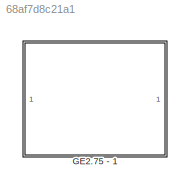
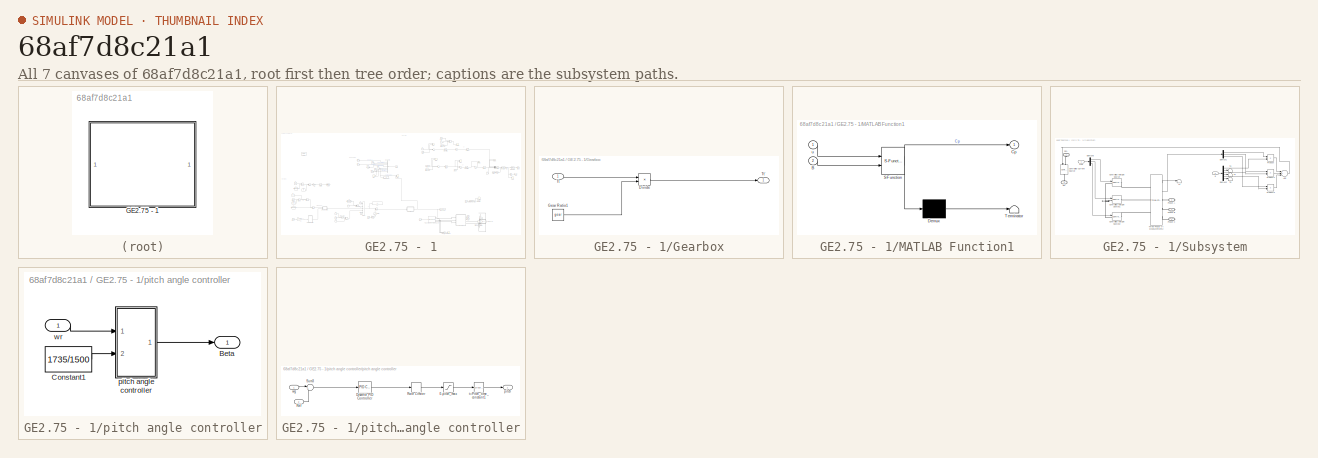
[diagram: thumbnail index - all 7 canvases of the model, root first then tree order]
MODEL slx_68af7d8c21a1
KIND model
CONFIG AbsTol = auto
CONFIG FixedStep = Ts
CONFIG MaxStep = auto
CONFIG MinStep = auto
CONFIG RelTol = 1e-3
CONFIG SampleTimeConstraint = Unconstrained
CONFIG Solver = FixedStepAuto
CONFIG SolverMode = Auto
CONFIG SolverName = FixedStepAuto
CONFIG StartTime = 0.0
CONFIG StopTime = 25
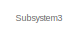
[diagram: GE2.75 - 1 - part 1/8, top center region]
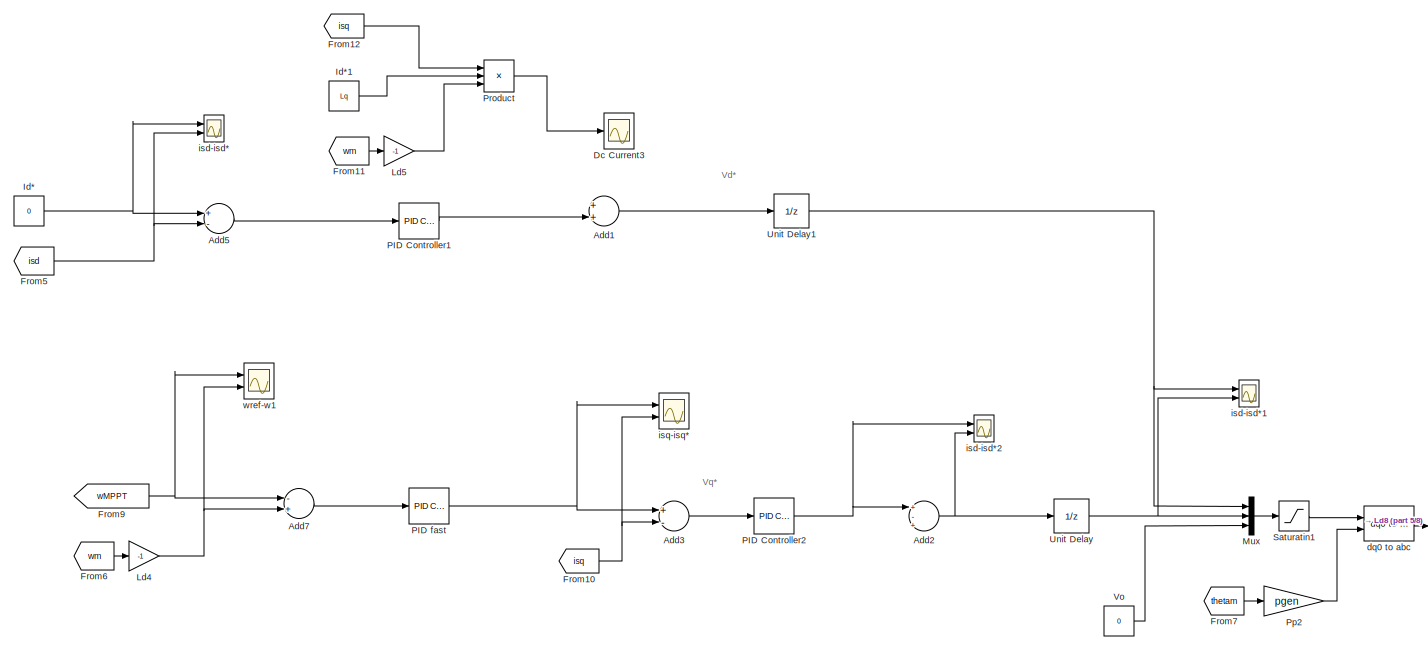
[diagram: GE2.75 - 1 - part 2/8, top right region]
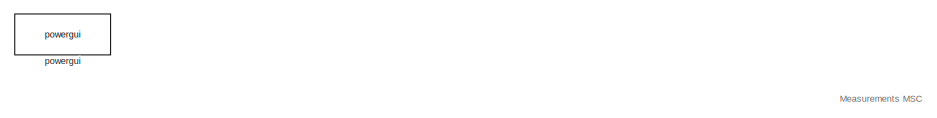
[diagram: GE2.75 - 1 - part 3/8, top left region]
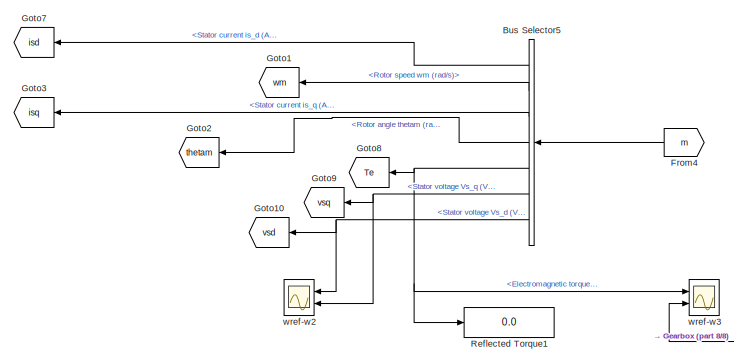
[diagram: GE2.75 - 1 - part 4/8, central region]
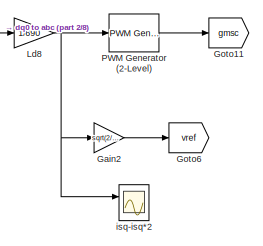
[diagram: GE2.75 - 1 - part 5/8, middle right region]
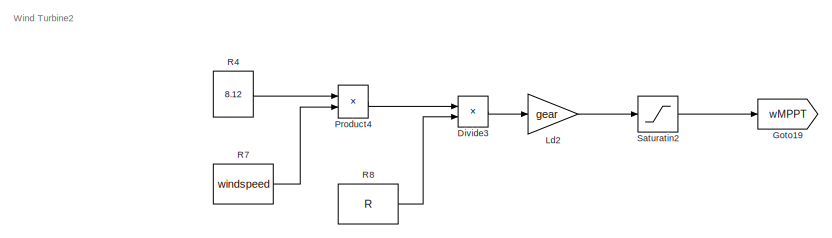
[diagram: GE2.75 - 1 - part 6/8, middle left region]
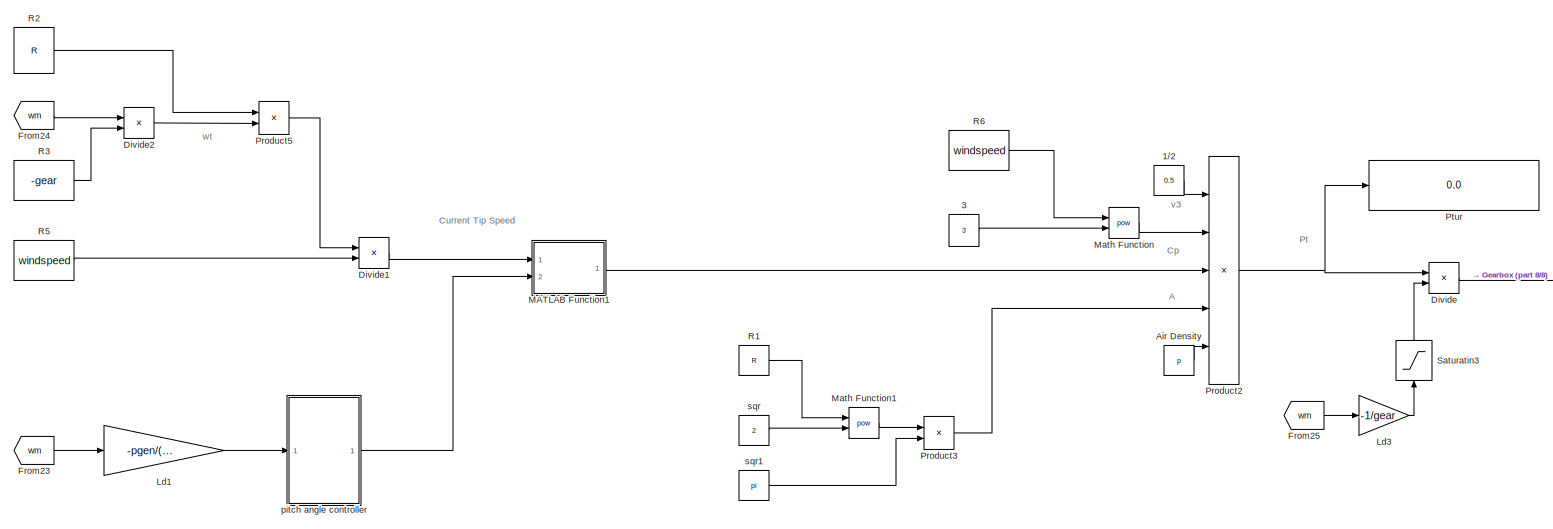
[diagram: GE2.75 - 1 - part 7/8, bottom left region]
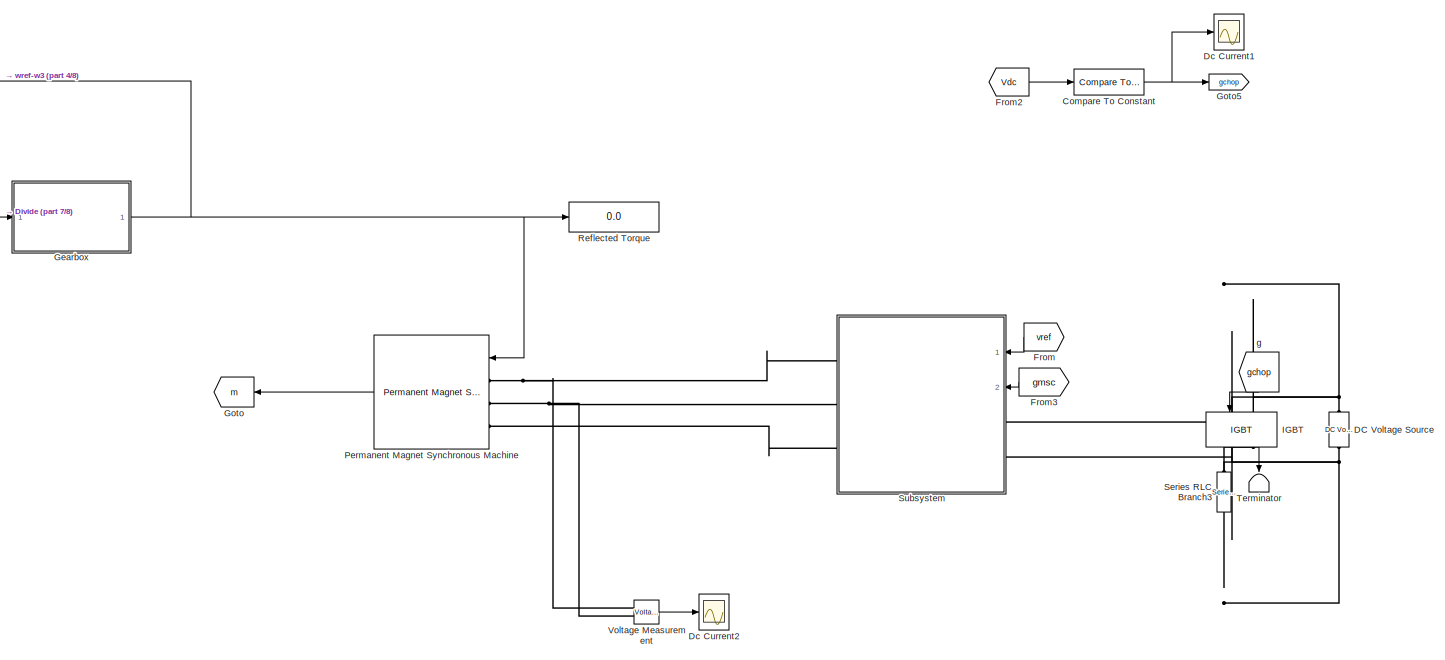
[diagram: GE2.75 - 1 - part 8/8, bottom right region]
BLOCK [SubSystem] GE2.75 - 1
  Ports = []
  RequestExecContextInheritance = off
  Variant = off
BLOCK [Constant] GE2.75 - 1/1//2
  Value = 0.5
BLOCK [Constant] GE2.75 - 1/3
  Value = 3
BLOCK [Sum] GE2.75 - 1/Add1
  InputSameDT = off
  OutDataTypeStr = Inherit: Inherit via internal rule
  Ports = [2, 1]
  SaturateOnIntegerOverflow = off
BLOCK [Sum] GE2.75 - 1/Add2
  InputSameDT = off
  Inputs = +-+
  OutDataTypeStr = Inherit: Inherit via internal rule
  Ports = [3, 1]
  SaturateOnIntegerOverflow = off
BLOCK [Sum] GE2.75 - 1/Add3
  InputSameDT = off
  Inputs = +-
  OutDataTypeStr = Inherit: Inherit via internal rule
  Ports = [2, 1]
  SaturateOnIntegerOverflow = off
BLOCK [Sum] GE2.75 - 1/Add5
  InputSameDT = off
  Inputs = +-
  OutDataTypeStr = Inherit: Inherit via internal rule
  Ports = [2, 1]
  SaturateOnIntegerOverflow = off
BLOCK [Sum] GE2.75 - 1/Add7
  InputSameDT = off
  Inputs = -+
  OutDataTypeStr = Inherit: Inherit via internal rule
  Ports = [2, 1]
  SaturateOnIntegerOverflow = off
BLOCK [Constant] GE2.75 - 1/Air Density
  Value = p
BLOCK [BusSelector] GE2.75 - 1/Bus Selector5
  OutputSignals = Stator current is_d (A),Rotor speed wm (rad/s),Stator current is_q (A),Rotor angle thetam (rad),Electromagnetic torque Te (N*m),Stator voltage Vs_q (V),Stator voltage Vs_d (V)
  Ports = [1, 7]
BLOCK [Reference] GE2.75 - 1/Compare To Constant  REF=simulink/Logic and Bit
Operations/Compare
To Constant
  Ports = [1, 1]
  SourceBlock = simulink/Logic and Bit\nOperations/Compare\nTo Constant
  SourceType = Compare To Constant
BLOCK [Reference] GE2.75 - 1/DC Voltage Source  REF=powerlib/Electrical
Sources/DC Voltage Source
  Ports = [0, 0, 0, 0, 0, 1, 1]
  SourceBlock = powerlib/Electrical\nSources/DC Voltage Source
  SourceType = DC Voltage Source
BLOCK [Scope] GE2.75 - 1/Dc Current1
  Ports = [1]
  ScopeSpecificationString = Simulink.scopes.TimeScopeBlockCfg('CurrentConfiguration', extmgr.ConfigurationSet(extmgr.Configuration('Core','General UI',true),extmgr.Configuration('Core','Source UI',true),extmgr.Configuration('Sources','WiredSimulink',true,'DataLoggingVariableName','ScopeData1'),extmgr.Configuration('Visuals','Time Domain',true,'SerializedDisplays',{struct('MinYLimReal','-0.29202','MaxYLimReal','1.08911','YLab...<+1422ch>
BLOCK [Scope] GE2.75 - 1/Dc Current2
  Ports = [1]
  ScopeSpecificationString = Simulink.scopes.TimeScopeBlockCfg('CurrentConfiguration', extmgr.ConfigurationSet(extmgr.Configuration('Core','General UI',true),extmgr.Configuration('Core','Source UI',true),extmgr.Configuration('Sources','WiredSimulink',true,'DataLoggingVariableName','ScopeData1'),extmgr.Configuration('Visuals','Time Domain',true,'SerializedDisplays',{struct('MinYLimReal','-2200137.60202','MaxYLimReal','2178040....<+1468ch>
BLOCK [Scope] GE2.75 - 1/Dc Current3
  Ports = [1]
  ScopeSpecificationString = Simulink.scopes.TimeScopeBlockCfg('CurrentConfiguration', extmgr.ConfigurationSet(extmgr.Configuration('Core','General UI',true),extmgr.Configuration('Core','Source UI',true),extmgr.Configuration('Sources','WiredSimulink',true,'DataLoggingVariableName','ScopeData6'),extmgr.Configuration('Visuals','Time Domain',true,'SerializedDisplays',{struct('MinYLimReal','-43.84094','MaxYLimReal','394.56847','Y...<+1449ch>
BLOCK [Product] GE2.75 - 1/Divide
  InputSameDT = off
  Inputs = */
  OutDataTypeStr = Inherit: Inherit via internal rule
  Ports = [2, 1]
  RndMeth = Floor
  SaturateOnIntegerOverflow = off
BLOCK [Product] GE2.75 - 1/Divide1
  InputSameDT = off
  Inputs = */
  OutDataTypeStr = Inherit: Inherit via internal rule
  Ports = [2, 1]
  RndMeth = Floor
  SaturateOnIntegerOverflow = off
BLOCK [Product] GE2.75 - 1/Divide2
  InputSameDT = off
  Inputs = */
  OutDataTypeStr = Inherit: Inherit via internal rule
  Ports = [2, 1]
  RndMeth = Floor
  SaturateOnIntegerOverflow = off
BLOCK [Product] GE2.75 - 1/Divide3
  InputSameDT = off
  Inputs = */
  OutDataTypeStr = Inherit: Inherit via internal rule
  Ports = [2, 1]
  RndMeth = Floor
  SaturateOnIntegerOverflow = off
BLOCK [From] GE2.75 - 1/From
  GotoTag = vref
  TagVisibility = global
BLOCK [From] GE2.75 - 1/From10
  GotoTag = isq
BLOCK [From] GE2.75 - 1/From11
  GotoTag = wm
BLOCK [From] GE2.75 - 1/From12
  GotoTag = isq
BLOCK [From] GE2.75 - 1/From2
  GotoTag = Vdc
BLOCK [From] GE2.75 - 1/From23
  GotoTag = wm
BLOCK [From] GE2.75 - 1/From24
  GotoTag = wm
BLOCK [From] GE2.75 - 1/From25
  GotoTag = wm
BLOCK [From] GE2.75 - 1/From3
  GotoTag = gmsc
BLOCK [From] GE2.75 - 1/From4
  GotoTag = m
BLOCK [From] GE2.75 - 1/From5
  GotoTag = isd
BLOCK [From] GE2.75 - 1/From6
  GotoTag = wm
BLOCK [From] GE2.75 - 1/From7
  GotoTag = thetam
BLOCK [From] GE2.75 - 1/From9
  GotoTag = wMPPT
BLOCK [Gain] GE2.75 - 1/Gain2
  Gain = sqrt(2/3)*690
  OutDataTypeStr = Inherit: Inherit via internal rule
  ParamDataTypeStr = Inherit: Inherit via internal rule
  SaturateOnIntegerOverflow = off
BLOCK [SubSystem] GE2.75 - 1/Gearbox
  Ports = [1, 1]
  RequestExecContextInheritance = off
  Variant = off
BLOCK [Product] GE2.75 - 1/Gearbox/Divide
  InputSameDT = off
  Inputs = */
  OutDataTypeStr = Inherit: Inherit via internal rule
  Ports = [2, 1]
  RndMeth = Floor
  SaturateOnIntegerOverflow = off
BLOCK [Constant] GE2.75 - 1/Gearbox/Gear Ratio1
  Value = gear
BLOCK [Inport] GE2.75 - 1/Gearbox/Tt
  IconDisplay = Port number
BLOCK [Outport] GE2.75 - 1/Gearbox/Tt'
  IconDisplay = Port number
BLOCK [Goto] GE2.75 - 1/Goto
  GotoTag = m
BLOCK [Goto] GE2.75 - 1/Goto1
  GotoTag = wm
BLOCK [Goto] GE2.75 - 1/Goto10
  GotoTag = vsd
BLOCK [Goto] GE2.75 - 1/Goto11
  GotoTag = gmsc
BLOCK [Goto] GE2.75 - 1/Goto19
  GotoTag = wMPPT
BLOCK [Goto] GE2.75 - 1/Goto2
  GotoTag = thetam
BLOCK [Goto] GE2.75 - 1/Goto3
  GotoTag = isq
BLOCK [Goto] GE2.75 - 1/Goto5
  GotoTag = gchop
BLOCK [Goto] GE2.75 - 1/Goto6
  GotoTag = vref
  TagVisibility = global
BLOCK [Goto] GE2.75 - 1/Goto7
  GotoTag = isd
BLOCK [Goto] GE2.75 - 1/Goto8
  GotoTag = Te
BLOCK [Goto] GE2.75 - 1/Goto9
  GotoTag = vsq
BLOCK [Reference] GE2.75 - 1/IGBT  REF=powerlib/Power
Electronics/IGBT
  Ports = [1, 1, 0, 0, 0, 1, 1]
  SourceBlock = powerlib/Power\nElectronics/IGBT
  SourceType = IGBT
BLOCK [Constant] GE2.75 - 1/Id*
  Value = 0
BLOCK [Constant] GE2.75 - 1/Id*1
  Value = Lq
BLOCK [Gain] GE2.75 - 1/Ld1
  Gain = -pgen/(2*fnom*pi)
  OutDataTypeStr = Inherit: Inherit via internal rule
  ParamDataTypeStr = Inherit: Inherit via internal rule
  SaturateOnIntegerOverflow = off
BLOCK [Gain] GE2.75 - 1/Ld2
  Gain = gear
  OutDataTypeStr = Inherit: Inherit via internal rule
  ParamDataTypeStr = Inherit: Inherit via internal rule
  SaturateOnIntegerOverflow = off
BLOCK [Gain] GE2.75 - 1/Ld3
  Gain = -1/gear
  OutDataTypeStr = Inherit: Inherit via internal rule
  ParamDataTypeStr = Inherit: Inherit via internal rule
  SaturateOnIntegerOverflow = off
BLOCK [Gain] GE2.75 - 1/Ld4
  Gain = -1
  OutDataTypeStr = Inherit: Inherit via internal rule
  ParamDataTypeStr = Inherit: Inherit via internal rule
  SaturateOnIntegerOverflow = off
BLOCK [Gain] GE2.75 - 1/Ld5
  Gain = -1
  OutDataTypeStr = Inherit: Inherit via internal rule
  ParamDataTypeStr = Inherit: Inherit via internal rule
  SaturateOnIntegerOverflow = off
BLOCK [Gain] GE2.75 - 1/Ld8
  Gain = 1/690
  OutDataTypeStr = Inherit: Inherit via internal rule
  ParamDataTypeStr = Inherit: Inherit via internal rule
  SaturateOnIntegerOverflow = off
BLOCK [SubSystem] GE2.75 - 1/MATLAB Function1
  ErrorFcn = Stateflow.Translate.translate
  PermitHierarchicalResolution = ExplicitOnly
  Ports = [2, 1]
  RequestExecContextInheritance = off
  SFBlockType = MATLAB Function
  TreatAsAtomicUnit = on
  Variant = off
BLOCK [Demux] GE2.75 - 1/MATLAB Function1/ Demux 
  Outputs = 1
  Ports = [1, 1]
BLOCK [S-Function] GE2.75 - 1/MATLAB Function1/ SFunction 
  EnableBusSupport = on
  FunctionName = sf_sfun
  PortCounts = [2 2]
  Ports = [2, 2]
  SFunctionDeploymentMode = off
  Tag = Stateflow S-Function MSC_v2 1
BLOCK [Terminator] GE2.75 - 1/MATLAB Function1/ Terminator 
BLOCK [Inport] GE2.75 - 1/MATLAB Function1/B
  IconDisplay = Port number
  Port = 2
BLOCK [Outport] GE2.75 - 1/MATLAB Function1/Cp
  IconDisplay = Port number
BLOCK [Inport] GE2.75 - 1/MATLAB Function1/u
  IconDisplay = Port number
BLOCK [Math] GE2.75 - 1/Math Function
  Operator = pow
  Ports = [2, 1]
BLOCK [Math] GE2.75 - 1/Math Function1
  Operator = pow
  Ports = [2, 1]
BLOCK [Mux] GE2.75 - 1/Mux
  DisplayOption = bar
  Inputs = 3
  Ports = [3, 1]
BLOCK [Reference] GE2.75 - 1/PID Controller1  REF=simulink/Continuous/PID Controller
  Ports = [1, 1]
  SourceBlock = simulink/Continuous/PID Controller
  SourceType = PID 1dof
BLOCK [Reference] GE2.75 - 1/PID Controller2  REF=simulink/Continuous/PID Controller
  Ports = [1, 1]
  SourceBlock = simulink/Continuous/PID Controller
  SourceType = PID 1dof
BLOCK [Reference] GE2.75 - 1/PID fast  REF=simulink/Continuous/PID Controller
  Ports = [1, 1]
  SourceBlock = simulink/Continuous/PID Controller
  SourceType = PID 1dof
BLOCK [Reference] GE2.75 - 1/PWM Generator (2-Level)  REF=powerlib_meascontrol/Pulse & Signal
Generators/PWM Generator
(2-Level)
  Ports = [1, 1]
  SourceBlock = powerlib_meascontrol/Pulse & Signal\nGenerators/PWM Generator\n(2-Level)
  SourceType = PWM Generator (2-Level)
BLOCK [Reference] GE2.75 - 1/Permanent Magnet Synchronous Machine  REF=powerlib/Machines/Permanent Magnet
Synchronous Machine
  Ports = [1, 1, 0, 0, 0, 3]
  SourceBlock = powerlib/Machines/Permanent Magnet\nSynchronous Machine
  SourceType = Permanent Magnet Synchronous Machine
BLOCK [Gain] GE2.75 - 1/Pp2
  Gain = pgen
  OutDataTypeStr = Inherit: Inherit via internal rule
  ParamDataTypeStr = Inherit: Inherit via internal rule
  SaturateOnIntegerOverflow = off
BLOCK [Product] GE2.75 - 1/Product
  InputSameDT = off
  Inputs = 3
  OutDataTypeStr = Inherit: Inherit via internal rule
  Ports = [3, 1]
  RndMeth = Floor
  SaturateOnIntegerOverflow = off
BLOCK [Product] GE2.75 - 1/Product2
  InputSameDT = off
  Inputs = 5
  OutDataTypeStr = Inherit: Inherit via internal rule
  Ports = [5, 1]
  RndMeth = Floor
  SaturateOnIntegerOverflow = off
BLOCK [Product] GE2.75 - 1/Product3
  InputSameDT = off
  OutDataTypeStr = Inherit: Inherit via internal rule
  Ports = [2, 1]
  RndMeth = Floor
  SaturateOnIntegerOverflow = off
BLOCK [Product] GE2.75 - 1/Product4
  InputSameDT = off
  OutDataTypeStr = Inherit: Inherit via internal rule
  Ports = [2, 1]
  RndMeth = Floor
  SaturateOnIntegerOverflow = off
BLOCK [Product] GE2.75 - 1/Product5
  InputSameDT = off
  OutDataTypeStr = Inherit: Inherit via internal rule
  Ports = [2, 1]
  RndMeth = Floor
  SaturateOnIntegerOverflow = off
BLOCK [Display] GE2.75 - 1/Ptur
  Decimation = 1
  Ports = [1]
BLOCK [Constant] GE2.75 - 1/R1
  Value = R
BLOCK [Constant] GE2.75 - 1/R2
  Value = R
BLOCK [Constant] GE2.75 - 1/R3
  Value = -gear
BLOCK [Constant] GE2.75 - 1/R4
  Value = 8.12
BLOCK [Constant] GE2.75 - 1/R5
  Value = windspeed
BLOCK [Constant] GE2.75 - 1/R6
  Value = windspeed
BLOCK [Constant] GE2.75 - 1/R7
  Value = windspeed
BLOCK [Constant] GE2.75 - 1/R8
  Value = R
BLOCK [Display] GE2.75 - 1/Reflected Torque
  Decimation = 1
  Ports = [1]
BLOCK [Display] GE2.75 - 1/Reflected Torque1
  Decimation = 1
  Ports = [1]
BLOCK [Saturate] GE2.75 - 1/Saturatin1
  InputPortMap = u0
  LowerLimit = -1500
  Ports = [1, 1]
  UpperLimit = 1500
BLOCK [Saturate] GE2.75 - 1/Saturatin2
  InputPortMap = u0
  LowerLimit = 1e-8
  Ports = [1, 1]
  UpperLimit = wmax
BLOCK [Saturate] GE2.75 - 1/Saturatin3
  InputPortMap = u0
  LowerLimit = 1e-8
  Ports = [1, 1]
  UpperLimit = inf
BLOCK [Reference] GE2.75 - 1/Series RLC Branch3  REF=powerlib/Elements/Series RLC Branch
  Ports = [0, 0, 0, 0, 0, 1, 1]
  SourceBlock = powerlib/Elements/Series RLC Branch
  SourceType = Series RLC Branch
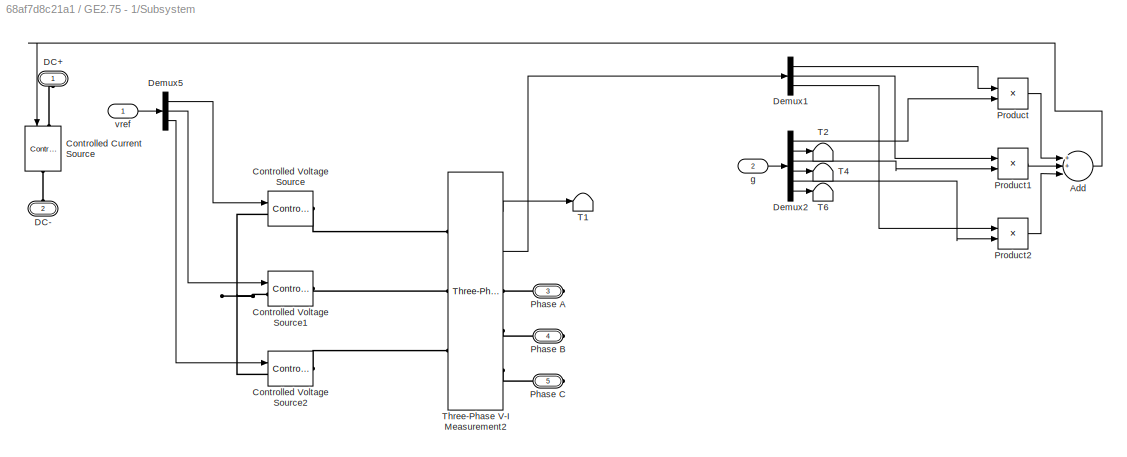
BLOCK [SubSystem] GE2.75 - 1/Subsystem
  Ports = [2, 0, 0, 0, 0, 2, 3]
  RequestExecContextInheritance = off
  Variant = off
BLOCK [Sum] GE2.75 - 1/Subsystem/Add
  InputSameDT = off
  Inputs = 3
  OutDataTypeStr = Inherit: Inherit via internal rule
  Ports = [3, 1]
  SaturateOnIntegerOverflow = off
BLOCK [Reference] GE2.75 - 1/Subsystem/Controlled Current Source  REF=powerlib/Electrical
Sources/Controlled Current Source
  Ports = [1, 0, 0, 0, 0, 1, 1]
  SourceBlock = powerlib/Electrical\nSources/Controlled Current Source
  SourceType = Controlled Current Source
BLOCK [Reference] GE2.75 - 1/Subsystem/Controlled Voltage Source  REF=powerlib/Electrical
Sources/Controlled Voltage Source
  Ports = [1, 0, 0, 0, 0, 1, 1]
  SourceBlock = powerlib/Electrical\nSources/Controlled Voltage Source
  SourceType = Controlled Voltage Source
BLOCK [Reference] GE2.75 - 1/Subsystem/Controlled Voltage Source1  REF=powerlib/Electrical
Sources/Controlled Voltage Source
  Ports = [1, 0, 0, 0, 0, 1, 1]
  SourceBlock = powerlib/Electrical\nSources/Controlled Voltage Source
  SourceType = Controlled Voltage Source
BLOCK [Reference] GE2.75 - 1/Subsystem/Controlled Voltage Source2  REF=powerlib/Electrical
Sources/Controlled Voltage Source
  Ports = [1, 0, 0, 0, 0, 1, 1]
  SourceBlock = powerlib/Electrical\nSources/Controlled Voltage Source
  SourceType = Controlled Voltage Source
BLOCK [PMIOPort] GE2.75 - 1/Subsystem/DC+
  Port = 1
  Side = Left
BLOCK [PMIOPort] GE2.75 - 1/Subsystem/DC-
  Port = 2
  Side = Left
BLOCK [Demux] GE2.75 - 1/Subsystem/Demux1
  DisplayOption = bar
  Outputs = 3
  Ports = [1, 3]
BLOCK [Demux] GE2.75 - 1/Subsystem/Demux2
  DisplayOption = bar
  Outputs = 6
  Ports = [1, 6]
BLOCK [Demux] GE2.75 - 1/Subsystem/Demux5
  DisplayOption = bar
  Outputs = 3
  Ports = [1, 3]
BLOCK [PMIOPort] GE2.75 - 1/Subsystem/Phase A
  Port = 3
  Side = Right
BLOCK [PMIOPort] GE2.75 - 1/Subsystem/Phase B
  Port = 4
  Side = Right
BLOCK [PMIOPort] GE2.75 - 1/Subsystem/Phase C
  Port = 5
  Side = Right
BLOCK [Product] GE2.75 - 1/Subsystem/Product
  InputSameDT = off
  OutDataTypeStr = Inherit: Inherit via internal rule
  Ports = [2, 1]
  RndMeth = Floor
  SaturateOnIntegerOverflow = off
BLOCK [Product] GE2.75 - 1/Subsystem/Product1
  InputSameDT = off
  OutDataTypeStr = Inherit: Inherit via internal rule
  Ports = [2, 1]
  RndMeth = Floor
  SaturateOnIntegerOverflow = off
BLOCK [Product] GE2.75 - 1/Subsystem/Product2
  InputSameDT = off
  OutDataTypeStr = Inherit: Inherit via internal rule
  Ports = [2, 1]
  RndMeth = Floor
  SaturateOnIntegerOverflow = off
BLOCK [Terminator] GE2.75 - 1/Subsystem/T1
BLOCK [Terminator] GE2.75 - 1/Subsystem/T2
BLOCK [Terminator] GE2.75 - 1/Subsystem/T4
BLOCK [Terminator] GE2.75 - 1/Subsystem/T6
BLOCK [Reference] GE2.75 - 1/Subsystem/Three-Phase V-I Measurement2  REF=powerlib/Measurements/Three-Phase
V-I Measurement
  Ports = [0, 2, 0, 0, 0, 3, 3]
  SourceBlock = powerlib/Measurements/Three-Phase\nV-I Measurement
  SourceType = Three-Phase VI Measurement
BLOCK [Inport] GE2.75 - 1/Subsystem/g
  IconDisplay = Port number
  Port = 2
BLOCK [Inport] GE2.75 - 1/Subsystem/vref
  IconDisplay = Port number
BLOCK [Terminator] GE2.75 - 1/Terminator
BLOCK [UnitDelay] GE2.75 - 1/Unit Delay
  InputProcessing = Elements as channels (sample based)
  SampleTime = Ts
BLOCK [UnitDelay] GE2.75 - 1/Unit Delay1
  InputProcessing = Elements as channels (sample based)
  SampleTime = Ts
BLOCK [Constant] GE2.75 - 1/Vo
  Value = 0
BLOCK [Reference] GE2.75 - 1/Voltage Measurement  REF=powerlib/Measurements/Voltage Measurement
  Ports = [0, 1, 0, 0, 0, 2]
  SourceBlock = powerlib/Measurements/Voltage Measurement
  SourceType = Voltage Measurement
  UserDataPersistent = on
BLOCK [Reference] GE2.75 - 1/dq0 to abc  REF=powerlib_meascontrol/Transformations/dq0 to abc
  Ports = [2, 1]
  SourceBlock = powerlib_meascontrol/Transformations/dq0 to abc
  SourceType = dq0 to abc Transformation
BLOCK [From] GE2.75 - 1/g
  GotoTag = gchop
BLOCK [Scope] GE2.75 - 1/isd-isd*
  NumInputPorts = 2
  Ports = [2]
  ScopeSpecificationString = Simulink.scopes.TimeScopeBlockCfg('CurrentConfiguration', extmgr.ConfigurationSet(extmgr.Configuration('Core','General UI',true),extmgr.Configuration('Core','Source UI',true),extmgr.Configuration('Sources','WiredSimulink',true,'DataLoggingVariableName','ScopeData3'),extmgr.Configuration('Visuals','Time Domain',true,'SerializedDisplays',{struct('MinYLimReal','-230.46849','MaxYLimReal','89.64922','Y...<+1477ch>
BLOCK [Scope] GE2.75 - 1/isd-isd*1
  NumInputPorts = 2
  Ports = [2]
  ScopeSpecificationString = Simulink.scopes.TimeScopeBlockCfg('CurrentConfiguration', extmgr.ConfigurationSet(extmgr.Configuration('Core','General UI',true),extmgr.Configuration('Core','Source UI',true),extmgr.Configuration('Sources','WiredSimulink',true,'DataLoggingVariableName','ScopeData1'),extmgr.Configuration('Visuals','Time Domain',true,'SerializedDisplays',{struct('MinYLimReal','-15185.40996','MaxYLimReal','3909.49','...<+1477ch>
BLOCK [Scope] GE2.75 - 1/isd-isd*2
  NumInputPorts = 2
  Ports = [2]
  ScopeSpecificationString = Simulink.scopes.TimeScopeBlockCfg('CurrentConfiguration', extmgr.ConfigurationSet(extmgr.Configuration('Core','General UI',true),extmgr.Configuration('Core','Source UI',true),extmgr.Configuration('Sources','WiredSimulink',true,'DataLoggingVariableName','ScopeData7'),extmgr.Configuration('Visuals','Time Domain',true,'SerializedDisplays',{struct('MinYLimReal','-4612.92212','MaxYLimReal','1668.10246'...<+1476ch>
BLOCK [Scope] GE2.75 - 1/isq-isq*
  NumInputPorts = 2
  Ports = [2]
  ScopeSpecificationString = Simulink.scopes.TimeScopeBlockCfg('CurrentConfiguration', extmgr.ConfigurationSet(extmgr.Configuration('Core','General UI',true),extmgr.Configuration('Core','Source UI',true),extmgr.Configuration('Sources','WiredSimulink',true,'DataLoggingVariableName','ScopeData1'),extmgr.Configuration('Visuals','Time Domain',true,'SerializedDisplays',{struct('MinYLimReal','-184.41111','MaxYLimReal','2075.94626',...<+1490ch>
BLOCK [Scope] GE2.75 - 1/isq-isq*2
  NumInputPorts = 2
  Ports = [2]
  ScopeSpecificationString = Simulink.scopes.TimeScopeBlockCfg('CurrentConfiguration', extmgr.ConfigurationSet(extmgr.Configuration('Core','General UI',true),extmgr.Configuration('Core','Source UI',true),extmgr.Configuration('Sources','WiredSimulink',true,'DataLoggingVariableName','ScopeData3'),extmgr.Configuration('Visuals','Time Domain',true,'SerializedDisplays',{struct('MinYLimReal','1518.30001','MaxYLimReal','1526.88811',...<+1487ch>
BLOCK [SubSystem] GE2.75 - 1/pitch angle controller
  Ports = [1, 1]
  RequestExecContextInheritance = off
  Variant = off
BLOCK [Outport] GE2.75 - 1/pitch angle controller/Beta
  IconDisplay = Port number
BLOCK [Constant] GE2.75 - 1/pitch angle controller/Constant1
  SampleTime = Ts
  Value = 1735/1500
BLOCK [SubSystem] GE2.75 - 1/pitch angle controller/pitch angle controller
  Ports = [2, 1]
  RequestExecContextInheritance = off
  Variant = off
BLOCK [Saturate] GE2.75 - 1/pitch angle controller/pitch angle controller/0-pitch_max 
  InputPortMap = u0
  LowerLimit = 0
  Ports = [1, 1]
  SampleTime = Ts
  UpperLimit = 27
BLOCK [Reference] GE2.75 - 1/pitch angle controller/pitch angle controller/Discrete PID Controller  REF=simulink/Continuous/PID Controller
  Ports = [1, 1]
  SourceBlock = simulink/Continuous/PID Controller
  SourceType = PID 1dof
BLOCK [RateLimiter] GE2.75 - 1/pitch angle controller/pitch angle controller/Rate Limiter
  FallingSlewLimit = -10
  RisingSlewLimit = 10
BLOCK [Inport] GE2.75 - 1/pitch angle controller/pitch angle controller/Ref
  IconDisplay = Port number
  Port = 2
BLOCK [Sum] GE2.75 - 1/pitch angle controller/pitch angle controller/Sum3
  IconShape = round
  InputSameDT = off
  Inputs = |+-
  OutDataTypeStr = Inherit: Inherit via internal rule
  Ports = [2, 1]
  SampleTime = Ts
  SaturateOnIntegerOverflow = off
BLOCK [Outport] GE2.75 - 1/pitch angle controller/pitch angle controller/pitch
  IconDisplay = Port number
BLOCK [Reference] GE2.75 - 1/pitch angle controller/pitch angle controller/t=Pitch_time_constant1  REF=powerlib_extras/Discrete 
Control Blocks/Discrete
1st-Order
Filter
  Ports = [1, 1]
  SourceBlock = powerlib_extras/Discrete \nControl Blocks/Discrete\n1st-Order\nFilter
  SourceType = Discrete 1st-Order Filter
BLOCK [Inport] GE2.75 - 1/pitch angle controller/pitch angle controller/wg
  IconDisplay = Port number
BLOCK [Inport] GE2.75 - 1/pitch angle controller/wr
  IconDisplay = Port number
BLOCK [Reference] GE2.75 - 1/powergui  REF=powerlib/powergui
  Ports = []
  Priority = 2
  SourceBlock = powerlib/powergui
  SourceType = PSB option menu block
BLOCK [Constant] GE2.75 - 1/sqr
  Value = 2
BLOCK [Constant] GE2.75 - 1/sqr1
  Value = pi
BLOCK [Scope] GE2.75 - 1/wref-w1
  NumInputPorts = 2
  Ports = [2]
  ScopeSpecificationString = Simulink.scopes.TimeScopeBlockCfg('CurrentConfiguration', extmgr.ConfigurationSet(extmgr.Configuration('Core','General UI',true),extmgr.Configuration('Core','Source UI',true),extmgr.Configuration('Sources','WiredSimulink',true,'DataLoggingVariableName','ScopeData1'),extmgr.Configuration('Visuals','Time Domain',true,'SerializedDisplays',{struct('MinYLimReal','157.34852','MaxYLimReal','183.86333','Y...<+1466ch>
BLOCK [Scope] GE2.75 - 1/wref-w2
  NumInputPorts = 2
  Ports = [2]
  ScopeSpecificationString = Simulink.scopes.TimeScopeBlockCfg('CurrentConfiguration', extmgr.ConfigurationSet(extmgr.Configuration('Core','General UI',true),extmgr.Configuration('Core','Source UI',true),extmgr.Configuration('Sources','WiredSimulink',true,'DataLoggingVariableName','ScopeData5'),extmgr.Configuration('Visuals','Time Domain',true,'SerializedDisplays',{struct('MinYLimReal','-1003.03592','MaxYLimReal','1005.08549'...<+1504ch>
BLOCK [Scope] GE2.75 - 1/wref-w3
  NumInputPorts = 2
  Ports = [2]
  ScopeSpecificationString = Simulink.scopes.TimeScopeBlockCfg('CurrentConfiguration', extmgr.ConfigurationSet(extmgr.Configuration('Core','General UI',true),extmgr.Configuration('Core','Source UI',true),extmgr.Configuration('Sources','WiredSimulink',true,'DataLoggingVariableName','ScopeData4'),extmgr.Configuration('Visuals','Time Domain',true,'SerializedDisplays',{struct('MinYLimReal','-209585.38668','MaxYLimReal','250562.87...<+1515ch>
ANNOTATION GE2.75 - 1: wt
ANNOTATION GE2.75 - 1: A
ANNOTATION GE2.75 - 1: Cp
ANNOTATION GE2.75 - 1: Current Tip Speed
ANNOTATION GE2.75 - 1: Measurements MSC
ANNOTATION GE2.75 - 1: Pt
ANNOTATION GE2.75 - 1: Subsystem3
ANNOTATION GE2.75 - 1: Vd*
ANNOTATION GE2.75 - 1: Vq*
ANNOTATION GE2.75 - 1: Wind Turbine2
ANNOTATION GE2.75 - 1: v3
LINE GE2.75 - 1/1//2:1 -> GE2.75 - 1/Product2:1
LINE GE2.75 - 1/3:1 -> GE2.75 - 1/Math Function:2
LINE GE2.75 - 1/Add1:1 -> GE2.75 - 1/Unit Delay1:1
NET GE2.75 - 1/Add2:1 -> GE2.75 - 1/Unit Delay:1, GE2.75 - 1/isd-isd*2:2
LINE GE2.75 - 1/Add3:1 -> GE2.75 - 1/PID Controller2:1
LINE GE2.75 - 1/Add5:1 -> GE2.75 - 1/PID Controller1:1
LINE GE2.75 - 1/Add7:1 -> GE2.75 - 1/PID fast:1
LINE GE2.75 - 1/Air Density:1 -> GE2.75 - 1/Product2:5
LINE GE2.75 - 1/Bus Selector5:1 -> GE2.75 - 1/Goto7:1
LINE GE2.75 - 1/Bus Selector5:2 -> GE2.75 - 1/Goto1:1
LINE GE2.75 - 1/Bus Selector5:3 -> GE2.75 - 1/Goto3:1
LINE GE2.75 - 1/Bus Selector5:4 -> GE2.75 - 1/Goto2:1
NET GE2.75 - 1/Bus Selector5:5 -> GE2.75 - 1/Goto8:1, GE2.75 - 1/Reflected Torque1:1, GE2.75 - 1/wref-w3:1
NET GE2.75 - 1/Bus Selector5:6 -> GE2.75 - 1/Goto9:1, GE2.75 - 1/wref-w2:2
NET GE2.75 - 1/Bus Selector5:7 -> GE2.75 - 1/Goto10:1, GE2.75 - 1/wref-w2:1
NET GE2.75 - 1/Compare To Constant:1 -> GE2.75 - 1/Dc Current1:1, GE2.75 - 1/Goto5:1
LINE GE2.75 - 1/Divide1:1 -> GE2.75 - 1/MATLAB Function1:1
LINE GE2.75 - 1/Divide2:1 -> GE2.75 - 1/Product5:2
LINE GE2.75 - 1/Divide3:1 -> GE2.75 - 1/Ld2:1
LINE GE2.75 - 1/Divide:1 -> GE2.75 - 1/Gearbox:1
NET GE2.75 - 1/From10:1 -> GE2.75 - 1/Add3:2, GE2.75 - 1/isq-isq*:2
LINE GE2.75 - 1/From11:1 -> GE2.75 - 1/Ld5:1
LINE GE2.75 - 1/From12:1 -> GE2.75 - 1/Product:1
LINE GE2.75 - 1/From23:1 -> GE2.75 - 1/Ld1:1
LINE GE2.75 - 1/From24:1 -> GE2.75 - 1/Divide2:1
LINE GE2.75 - 1/From25:1 -> GE2.75 - 1/Ld3:1
LINE GE2.75 - 1/From2:1 -> GE2.75 - 1/Compare To Constant:1
LINE GE2.75 - 1/From3:1 -> GE2.75 - 1/Subsystem:2
LINE GE2.75 - 1/From4:1 -> GE2.75 - 1/Bus Selector5:1
NET GE2.75 - 1/From5:1 -> GE2.75 - 1/Add5:2, GE2.75 - 1/isd-isd*:2
LINE GE2.75 - 1/From6:1 -> GE2.75 - 1/Ld4:1
LINE GE2.75 - 1/From7:1 -> GE2.75 - 1/Pp2:1
NET GE2.75 - 1/From9:1 -> GE2.75 - 1/Add7:1, GE2.75 - 1/wref-w1:1
LINE GE2.75 - 1/From:1 -> GE2.75 - 1/Subsystem:1
LINE GE2.75 - 1/Gain2:1 -> GE2.75 - 1/Goto6:1
LINE GE2.75 - 1/Gearbox/Divide:1 -> GE2.75 - 1/Gearbox/Tt':1
LINE GE2.75 - 1/Gearbox/Gear Ratio1:1 -> GE2.75 - 1/Gearbox/Divide:2
LINE GE2.75 - 1/Gearbox/Tt:1 -> GE2.75 - 1/Gearbox/Divide:1
NET GE2.75 - 1/Gearbox:1 -> GE2.75 - 1/Permanent Magnet Synchronous Machine:1, GE2.75 - 1/Reflected Torque:1, GE2.75 - 1/wref-w3:2
LINE GE2.75 - 1/IGBT:1 -> GE2.75 - 1/Terminator:1
LINE GE2.75 - 1/Id*1:1 -> GE2.75 - 1/Product:2
NET GE2.75 - 1/Id*:1 -> GE2.75 - 1/Add5:1, GE2.75 - 1/isd-isd*:1
LINE GE2.75 - 1/Ld1:1 -> GE2.75 - 1/pitch angle controller:1
LINE GE2.75 - 1/Ld2:1 -> GE2.75 - 1/Saturatin2:1
LINE GE2.75 - 1/Ld3:1 -> GE2.75 - 1/Saturatin3:1
NET GE2.75 - 1/Ld4:1 -> GE2.75 - 1/Add7:2, GE2.75 - 1/wref-w1:2
LINE GE2.75 - 1/Ld5:1 -> GE2.75 - 1/Product:3
NET GE2.75 - 1/Ld8:1 -> GE2.75 - 1/Gain2:1, GE2.75 - 1/PWM Generator (2-Level):1, GE2.75 - 1/isq-isq*2:1
LINE GE2.75 - 1/MATLAB Function1:1 -> GE2.75 - 1/Product2:3
LINE GE2.75 - 1/Math Function1:1 -> GE2.75 - 1/Product3:1
LINE GE2.75 - 1/Math Function:1 -> GE2.75 - 1/Product2:2
LINE GE2.75 - 1/Mux:1 -> GE2.75 - 1/Saturatin1:1
LINE GE2.75 - 1/PID Controller1:1 -> GE2.75 - 1/Add1:2
NET GE2.75 - 1/PID Controller2:1 -> GE2.75 - 1/Add2:1, GE2.75 - 1/isd-isd*2:1
NET GE2.75 - 1/PID fast:1 -> GE2.75 - 1/Add3:1, GE2.75 - 1/isq-isq*:1
LINE GE2.75 - 1/PWM Generator (2-Level):1 -> GE2.75 - 1/Goto11:1
LINE GE2.75 - 1/Permanent Magnet Synchronous Machine:1 -> GE2.75 - 1/Goto:1
LINE GE2.75 - 1/Pp2:1 -> GE2.75 - 1/dq0 to abc:2
NET GE2.75 - 1/Product2:1 -> GE2.75 - 1/Divide:1, GE2.75 - 1/Ptur:1
LINE GE2.75 - 1/Product3:1 -> GE2.75 - 1/Product2:4
LINE GE2.75 - 1/Product4:1 -> GE2.75 - 1/Divide3:1
LINE GE2.75 - 1/Product5:1 -> GE2.75 - 1/Divide1:1
LINE GE2.75 - 1/Product:1 -> GE2.75 - 1/Dc Current3:1
LINE GE2.75 - 1/R1:1 -> GE2.75 - 1/Math Function1:1
LINE GE2.75 - 1/R2:1 -> GE2.75 - 1/Product5:1
LINE GE2.75 - 1/R3:1 -> GE2.75 - 1/Divide2:2
LINE GE2.75 - 1/R4:1 -> GE2.75 - 1/Product4:1
LINE GE2.75 - 1/R5:1 -> GE2.75 - 1/Divide1:2
LINE GE2.75 - 1/R6:1 -> GE2.75 - 1/Math Function:1
LINE GE2.75 - 1/R7:1 -> GE2.75 - 1/Product4:2
LINE GE2.75 - 1/R8:1 -> GE2.75 - 1/Divide3:2
LINE GE2.75 - 1/Saturatin1:1 -> GE2.75 - 1/dq0 to abc:1
LINE GE2.75 - 1/Saturatin2:1 -> GE2.75 - 1/Goto19:1
LINE GE2.75 - 1/Saturatin3:1 -> GE2.75 - 1/Divide:2
LINE GE2.75 - 1/Subsystem/Add:1 -> GE2.75 - 1/Subsystem/Controlled Current Source:1
LINE GE2.75 - 1/Subsystem/Demux1:1 -> GE2.75 - 1/Subsystem/Product:1
LINE GE2.75 - 1/Subsystem/Demux1:2 -> GE2.75 - 1/Subsystem/Product1:1
LINE GE2.75 - 1/Subsystem/Demux1:3 -> GE2.75 - 1/Subsystem/Product2:1
LINE GE2.75 - 1/Subsystem/Demux2:1 -> GE2.75 - 1/Subsystem/Product:2
LINE GE2.75 - 1/Subsystem/Demux2:2 -> GE2.75 - 1/Subsystem/T2:1
LINE GE2.75 - 1/Subsystem/Demux2:3 -> GE2.75 - 1/Subsystem/Product1:2
LINE GE2.75 - 1/Subsystem/Demux2:4 -> GE2.75 - 1/Subsystem/T4:1
LINE GE2.75 - 1/Subsystem/Demux2:5 -> GE2.75 - 1/Subsystem/Product2:2
LINE GE2.75 - 1/Subsystem/Demux2:6 -> GE2.75 - 1/Subsystem/T6:1
LINE GE2.75 - 1/Subsystem/Demux5:1 -> GE2.75 - 1/Subsystem/Controlled Voltage Source:1
LINE GE2.75 - 1/Subsystem/Demux5:2 -> GE2.75 - 1/Subsystem/Controlled Voltage Source1:1
LINE GE2.75 - 1/Subsystem/Demux5:3 -> GE2.75 - 1/Subsystem/Controlled Voltage Source2:1
LINE GE2.75 - 1/Subsystem/Product1:1 -> GE2.75 - 1/Subsystem/Add:2
LINE GE2.75 - 1/Subsystem/Product2:1 -> GE2.75 - 1/Subsystem/Add:3
LINE GE2.75 - 1/Subsystem/Product:1 -> GE2.75 - 1/Subsystem/Add:1
LINE GE2.75 - 1/Subsystem/Three-Phase V-I Measurement2:1 -> GE2.75 - 1/Subsystem/T1:1
LINE GE2.75 - 1/Subsystem/Three-Phase V-I Measurement2:2 -> GE2.75 - 1/Subsystem/Demux1:1
LINE GE2.75 - 1/Subsystem/g:1 -> GE2.75 - 1/Subsystem/Demux2:1
LINE GE2.75 - 1/Subsystem/vref:1 -> GE2.75 - 1/Subsystem/Demux5:1
NET GE2.75 - 1/Unit Delay1:1 -> GE2.75 - 1/Mux:1, GE2.75 - 1/isd-isd*1:1
NET GE2.75 - 1/Unit Delay:1 -> GE2.75 - 1/Mux:2, GE2.75 - 1/isd-isd*1:2
LINE GE2.75 - 1/Vo:1 -> GE2.75 - 1/Mux:3
LINE GE2.75 - 1/Voltage Measurement:1 -> GE2.75 - 1/Dc Current2:1
LINE GE2.75 - 1/dq0 to abc:1 -> GE2.75 - 1/Ld8:1
LINE GE2.75 - 1/g:1 -> GE2.75 - 1/IGBT:1
LINE GE2.75 - 1/pitch angle controller/Constant1:1 -> GE2.75 - 1/pitch angle controller/pitch angle controller:2
LINE GE2.75 - 1/pitch angle controller/pitch angle controller/0-pitch_max :1 -> GE2.75 - 1/pitch angle controller/pitch angle controller/t=Pitch_time_constant1:1
LINE GE2.75 - 1/pitch angle controller/pitch angle controller/Discrete PID Controller:1 -> GE2.75 - 1/pitch angle controller/pitch angle controller/Rate Limiter:1
LINE GE2.75 - 1/pitch angle controller/pitch angle controller/Rate Limiter:1 -> GE2.75 - 1/pitch angle controller/pitch angle controller/0-pitch_max :1
LINE GE2.75 - 1/pitch angle controller/pitch angle controller/Ref:1 -> GE2.75 - 1/pitch angle controller/pitch angle controller/Sum3:2
LINE GE2.75 - 1/pitch angle controller/pitch angle controller/Sum3:1 -> GE2.75 - 1/pitch angle controller/pitch angle controller/Discrete PID Controller:1
LINE GE2.75 - 1/pitch angle controller/pitch angle controller/t=Pitch_time_constant1:1 -> GE2.75 - 1/pitch angle controller/pitch angle controller/pitch:1
LINE GE2.75 - 1/pitch angle controller/pitch angle controller/wg:1 -> GE2.75 - 1/pitch angle controller/pitch angle controller/Sum3:1
LINE GE2.75 - 1/pitch angle controller/pitch angle controller:1 -> GE2.75 - 1/pitch angle controller/Beta:1
LINE GE2.75 - 1/pitch angle controller/wr:1 -> GE2.75 - 1/pitch angle controller/pitch angle controller:1
LINE GE2.75 - 1/pitch angle controller:1 -> GE2.75 - 1/MATLAB Function1:2
LINE GE2.75 - 1/sqr1:1 -> GE2.75 - 1/Product3:2
LINE GE2.75 - 1/sqr:1 -> GE2.75 - 1/Math Function1:2
PNET net1: GE2.75 - 1/DC Voltage Source:LConn1 -- GE2.75 - 1/Series RLC Branch3:RConn1 -- GE2.75 - 1/Subsystem:LConn2
PNET net2: GE2.75 - 1/DC Voltage Source:RConn1 -- GE2.75 - 1/IGBT:LConn1 -- GE2.75 - 1/Subsystem:LConn1
PLINE GE2.75 - 1/IGBT:RConn1 -- GE2.75 - 1/Series RLC Branch3:LConn1
PNET net3: GE2.75 - 1/Permanent Magnet Synchronous Machine:LConn1 -- GE2.75 - 1/Subsystem:RConn1 -- GE2.75 - 1/Voltage Measurement:LConn1
PNET net4: GE2.75 - 1/Permanent Magnet Synchronous Machine:LConn2 -- GE2.75 - 1/Subsystem:RConn2 -- GE2.75 - 1/Voltage Measurement:LConn2
PLINE GE2.75 - 1/Permanent Magnet Synchronous Machine:LConn3 -- GE2.75 - 1/Subsystem:RConn3
PLINE GE2.75 - 1/Subsystem/Controlled Current Source:LConn1 -- GE2.75 - 1/Subsystem/DC+:RConn1
PLINE GE2.75 - 1/Subsystem/Controlled Current Source:RConn1 -- GE2.75 - 1/Subsystem/DC-:RConn1
PNET net5: GE2.75 - 1/Subsystem/Controlled Voltage Source1:LConn1 -- GE2.75 - 1/Subsystem/Controlled Voltage Source2:LConn1 -- GE2.75 - 1/Subsystem/Controlled Voltage Source:LConn1
PLINE GE2.75 - 1/Subsystem/Controlled Voltage Source1:RConn1 -- GE2.75 - 1/Subsystem/Three-Phase V-I Measurement2:LConn2
PLINE GE2.75 - 1/Subsystem/Controlled Voltage Source2:RConn1 -- GE2.75 - 1/Subsystem/Three-Phase V-I Measurement2:LConn3
PLINE GE2.75 - 1/Subsystem/Controlled Voltage Source:RConn1 -- GE2.75 - 1/Subsystem/Three-Phase V-I Measurement2:LConn1
PLINE GE2.75 - 1/Subsystem/Phase A:RConn1 -- GE2.75 - 1/Subsystem/Three-Phase V-I Measurement2:RConn1
PLINE GE2.75 - 1/Subsystem/Phase B:RConn1 -- GE2.75 - 1/Subsystem/Three-Phase V-I Measurement2:RConn2
PLINE GE2.75 - 1/Subsystem/Phase C:RConn1 -- GE2.75 - 1/Subsystem/Three-Phase V-I Measurement2:RConn3
note: NET lines group one-source signal fan-out (src -> all destinations, sorted); 1:1 wires keep LINE; PNET lines group multi-terminal physical nets as a canonical sorted terminal list (undirected conserving connections); 2-terminal nets keep the pairwise PLINE form
CHART GE2.75 - 1/MATLAB Function1 states=1 transitions=1
  STATE_LABEL 'eML_blk_kernel()'
  STATE_LABEL 'SCRIPT:\nfunction Cp = fcn(u,B)\n\nc1 = 0.5176;\nc2 = 116;\nc3 = 0.4; \nc4 = 5;\nc5 = 21;\nc6 = 0.0068;\n\ni =u;\n\nli = 1/((1/(i+0.08*B))-(0.035/(B^3+1)));\n\nCp = c1*((c2/li-c3*B-c4)*exp(-c5/li))+c6*i;\n\nend\n'
